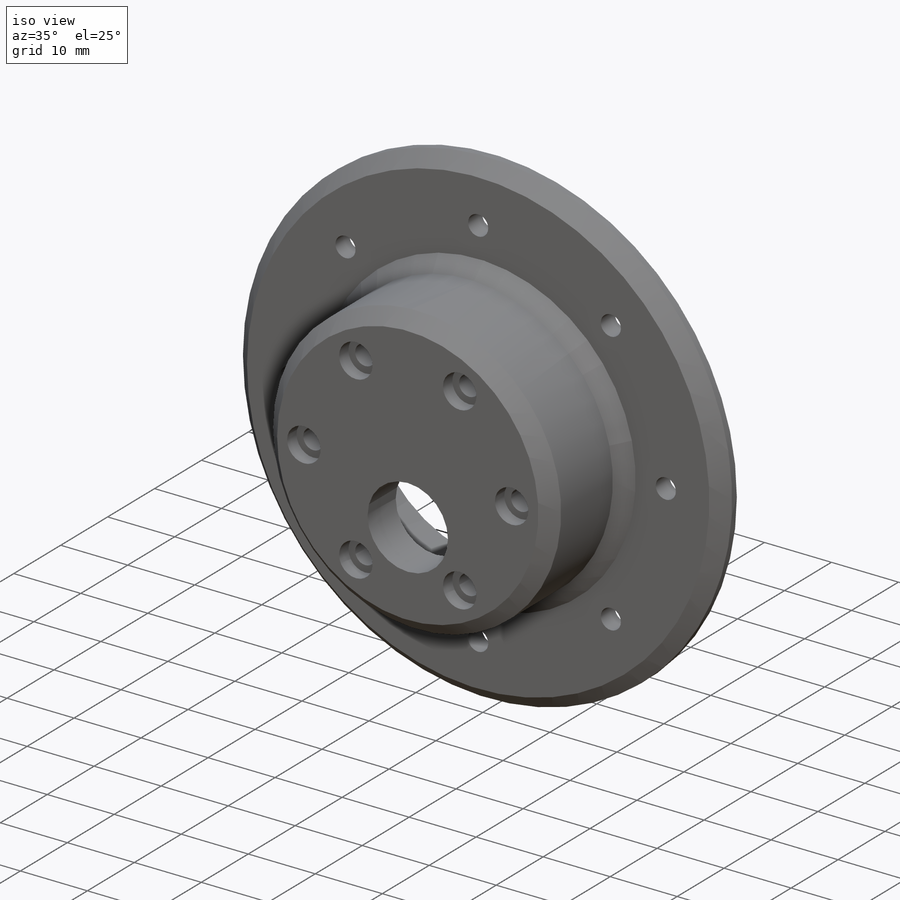
[diagram: iso view]
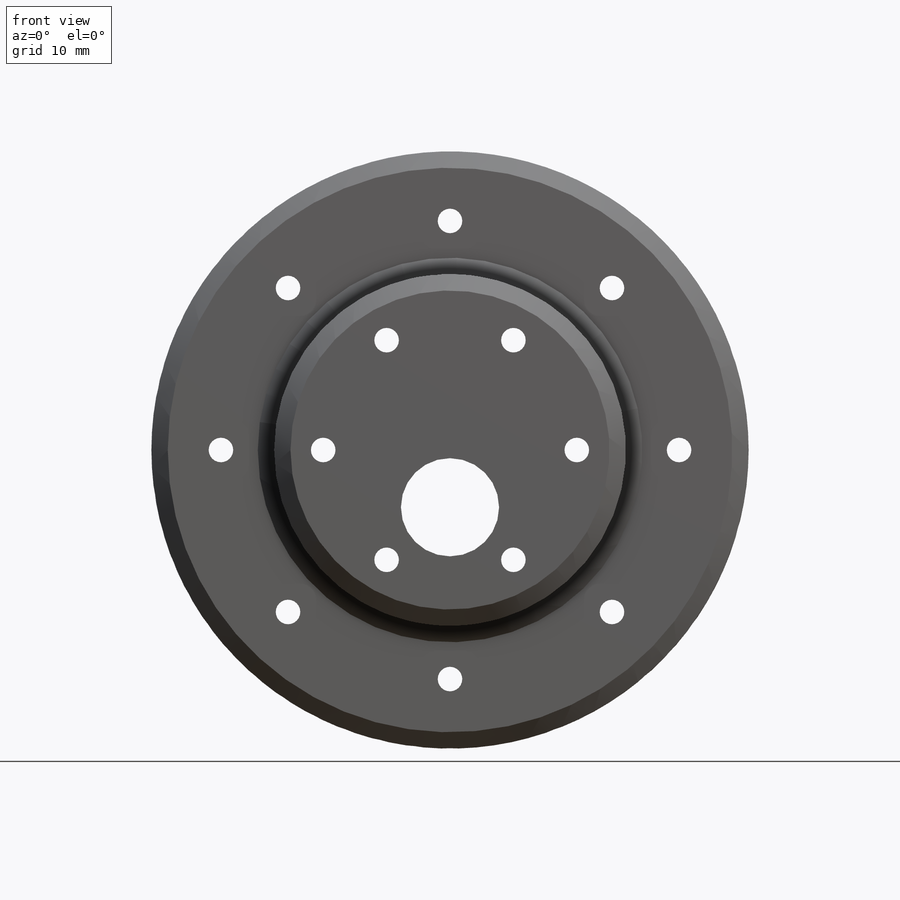
[diagram: front view]
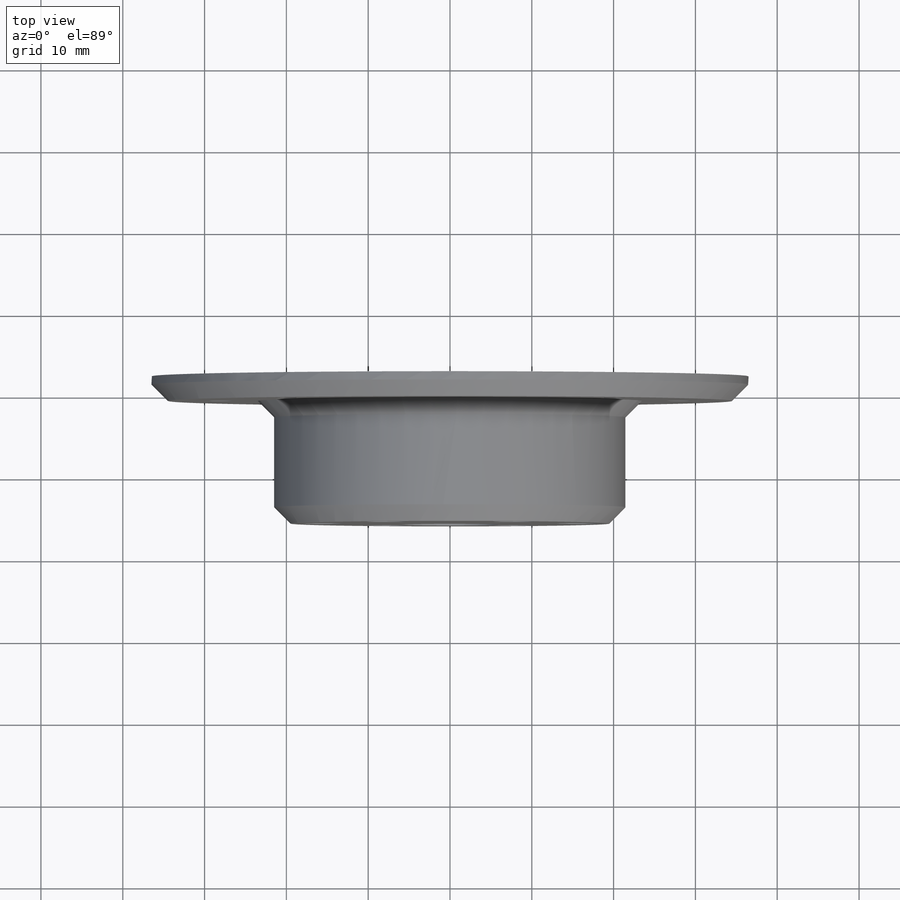
[diagram: top view]
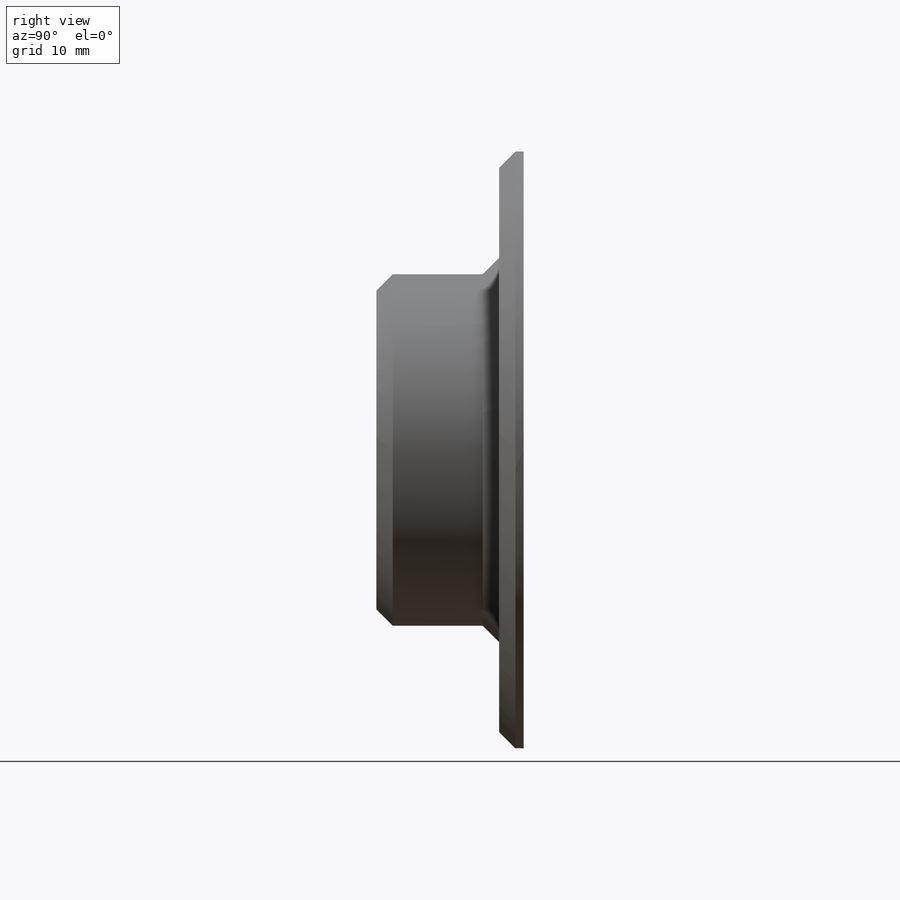
[diagram: right view]
SOLIDWORKS PART (.sldprt)
format: sldprt  version: not decoded by parser v0  size: 327,168 bytes
history: native  units: mm
features: sketch x9, hole x3, pattern_circular x2, material x1, revolve x1, chamfer x1 (+12 scaffold rows collapsed)
feature tree (29):
  scaffold x12  (default folders/planes/origin — collapsed)
  material  "2014 Alloy"
  sketch  "Sketch1"  dims[c1.D1=18.5mm c1.D2=6.0mm c1.D3=3.0mm c1.D4=15.0mm c1.D5=3.0mm c1.D6=15.0mm c2.D3=3.0mm c2.D7=5.0mm c2.D8=1.0mm c2.D9=2.0mm]
  revolve  "Revolve1"  Angle=360deg
  sketch  "Sketch2"  dims[D1=~20.802354mm]
  hole  "CBORE for M1.6 Hex Head Cap Screw1"  Diameter=3mm Depth=18mm
  sketch  "Sketch4"  dims[D1=15.5mm]
  sketch  "Sketch3"  dims[hole-wizard template sketch: 42 standard entries collapsed; hole parameters kept: c12.Thru Hole Depth=18.0mm c12.C'Bore Dia.=5.0mm c12.C'Bore Depth=2.0mm]
  pattern_circular  "CirPattern1"  Count=6 Angle=360deg
  hole  "Ø12.0mm Dowel Hole1"  Diameter=12mm Depth=15mm
  sketch  "Sketch6"  dims[D1=7.0mm]
  sketch  "Sketch5"  dims[hole-wizard template sketch: 46 standard entries collapsed; hole parameters kept: c15.Hole Dia.=12.0mm c15.Hole Depth=15.0mm c15.D3=~14.816244mm c15.Drill Angle=118.0deg]
  chamfer  "Chamfer1"  Distance=2mm Angle=45deg
  hole  "Ø3.0mm Dowel Hole3"  Diameter=3mm Depth=15mm
  sketch  "Sketch8"  dims[D1=28.0mm]
  sketch  "Sketch7"  dims[hole-wizard template sketch: 50 standard entries collapsed; hole parameters above]
  pattern_circular  "CirPattern2"  Count=8 Angle=360deg
  sketch  "Sketch9"  dims[D1=56.0mm]
decode coverage: 16 of 16 modeling features carry decoded parameters
note: ~ marks probable driven/reference dimensions
note: suppression state not decoded; provenance and decode notes live in map.json
